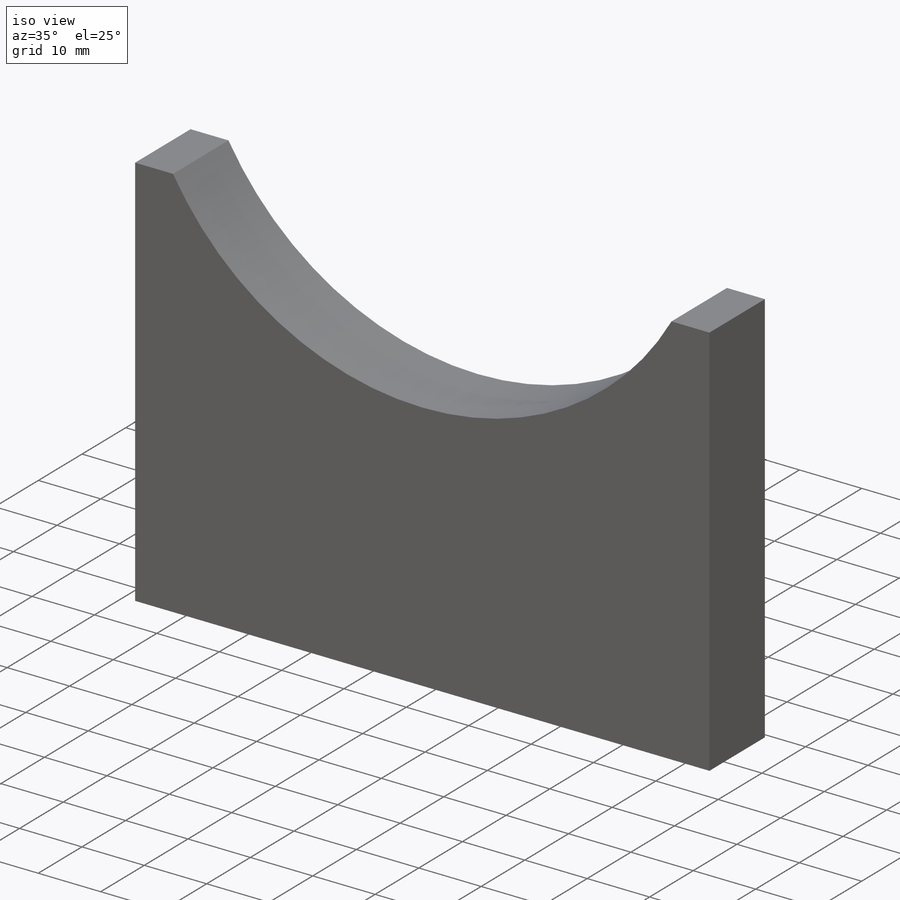
[diagram: iso view]
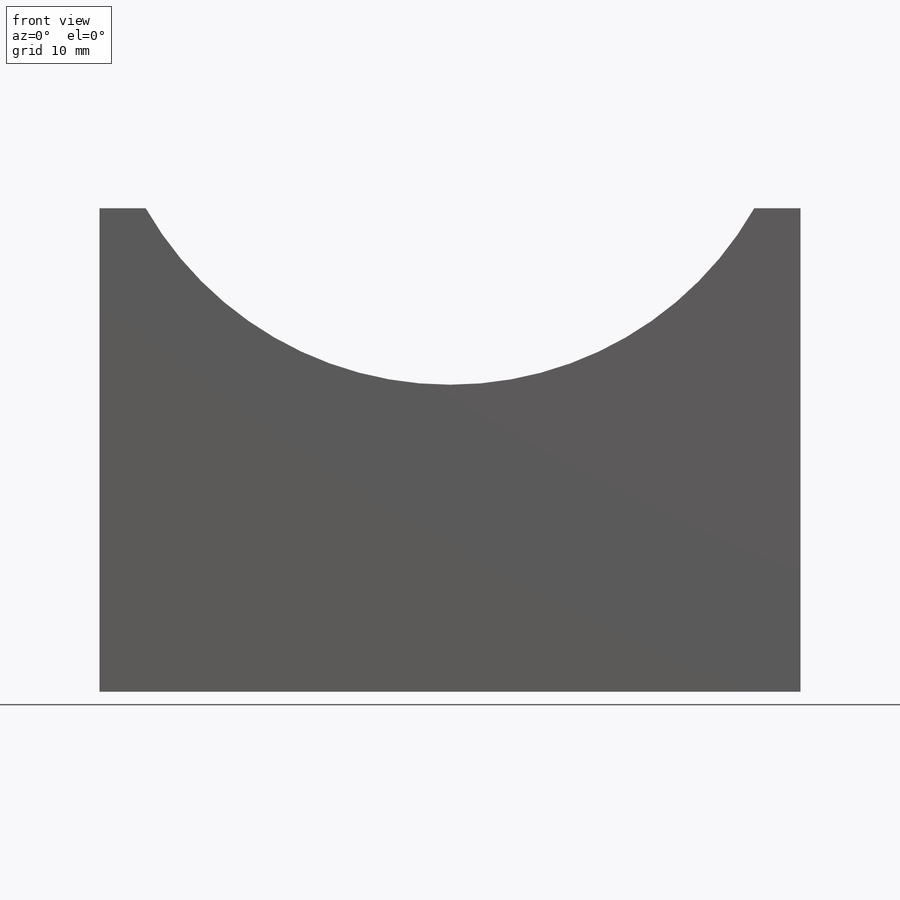
[diagram: front view]
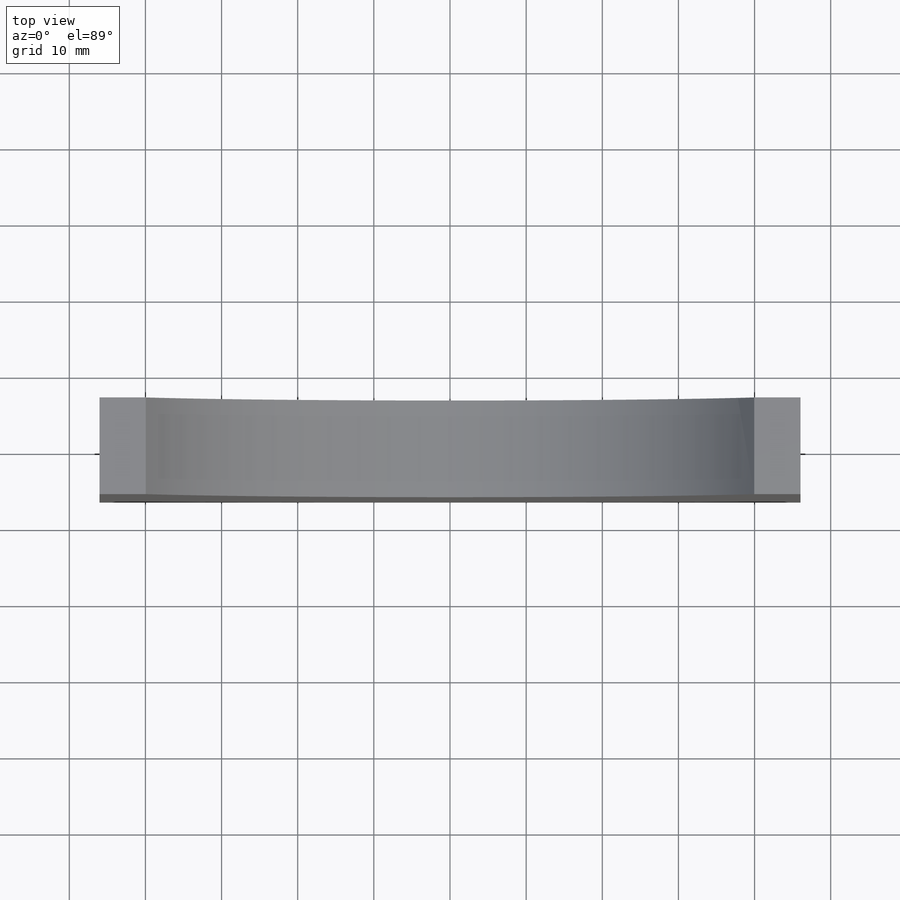
[diagram: top view]
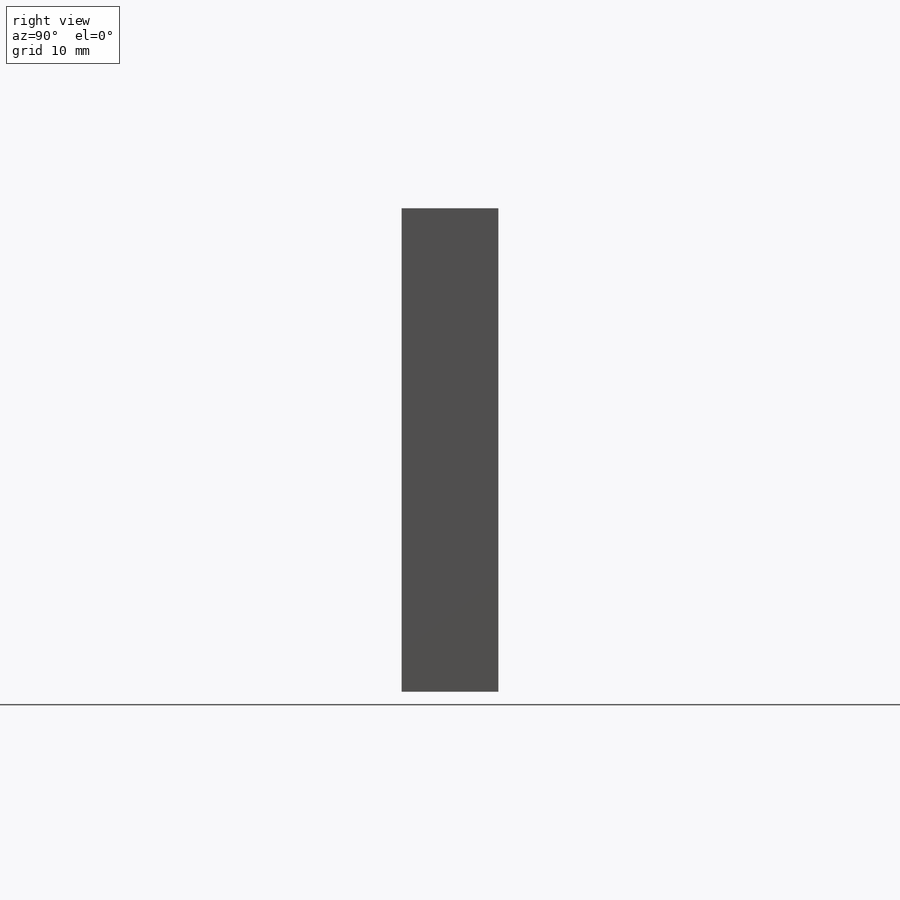
[diagram: right view]
SOLIDWORKS PART (.sldprt)
format: sldprt  version: not decoded by parser v0  size: 191,488 bytes
history: native  units: mm
features: sketch x3, material x1, extrude x1, cut_extrude x1 (+11 scaffold rows collapsed)
feature tree (17):
  scaffold x11  (default folders/planes/origin — collapsed)
  material  "1060 Alloy"
  sketch  "Sketch1"  dims[D1=92.075mm D2=86.36mm D3=63.5mm]
  extrude  "Boss-Extrude1"  Depth=12.7mm
  sketch  "Sketch2"  dims[D1=6.731mm D2=76.2mm]
  cut_extrude  "Cut-Extrude1"  Depth=12.7mm
  sketch  "TAG"  dims[c1.D1=63.5mm c1.D3=63.5mm c1.D2=92.075mm c2.D1=12.7mm c2.D2=63.5mm c2.D3=92.075mm]
decode coverage: 5 of 5 modeling features carry decoded parameters
note: suppression state not decoded; provenance and decode notes live in map.json
